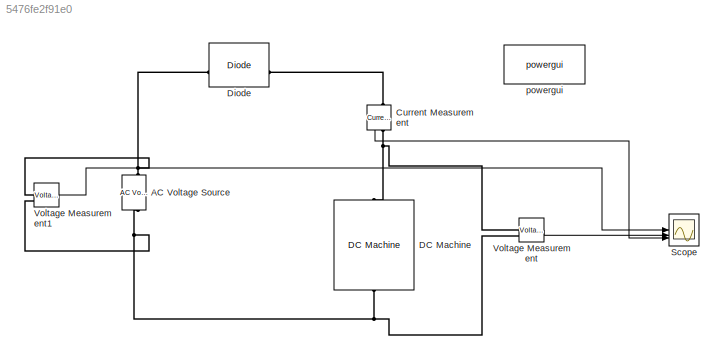
MODEL slx_5476fe2f91e0
KIND model
CONFIG AbsTol = auto
CONFIG EnableMultiTasking = off
CONFIG FixedStep = auto
CONFIG MaxStep = auto
CONFIG MinStep = auto
CONFIG RelTol = 1e-3
CONFIG SampleTimeConstraint = Unconstrained
CONFIG SolverName = VariableStepAuto
CONFIG StartTime = 0.0
CONFIG StopTime = 0.1
BLOCK [Reference] AC Voltage Source  REF=spsACVoltageSourceLib/AC Voltage Source
  LibrarySourceBlock = sps_lib/Sources/AC Voltage Source
  SourceBlock = spsACVoltageSourceLib/AC Voltage Source
  SourceType = AC Voltage Source
BLOCK [Reference] Current Measurement  REF=spsCurrentMeasurementLib/Current Measurement
  LibrarySourceBlock = sps_lib/Sensors and Measurements/Current Measurement
  NameLocation = left
  SourceBlock = spsCurrentMeasurementLib/Current Measurement
  SourceType = Current Measurement
  UserDataPersistent = on
BLOCK [Reference] DC Machine  REF=spsDCMachineLib/DC Machine
  LibrarySourceBlock = sps_lib/Electrical Machines/DC Machine
  NameLocation = left
  SourceBlock = spsDCMachineLib/DC Machine
  SourceType = DC machine
BLOCK [Reference] Diode  REF=spsDiodeLib/Diode
  LibrarySourceBlock = sps_lib/Power Electronics/Diode
  SourceBlock = spsDiodeLib/Diode
  SourceType = Diode
BLOCK [Scope] Scope
  ActiveDisplayYMaximum = 287.4492241378735
  ActiveDisplayYMinimum = -287.36705557484026
  Floating = off
  GraphicalSettings = {"Style":{"BackgroundColor":[0.12941176470588237,0.12941176470588237,0.12941176470588237],"AxesColor":[0.07058823529411765,0.07058823529411765,0.07058823529411765],"LabelsColor":[0.8509803921568627,0.8509803921568627,0.8509803921568627],"PreserveColors":false,"Visible":[true,true,true],"LineStyle":["-","-","-"],"LineWidth":[1.5,1.5,1.5],"BarWidth":[0.9,0.9,0.9],"LineColor":["auto","auto","auto"],"...<+2739ch>
  LayoutDimensionsString = [3,1]
  MultipleDisplayCache = [{"MaxYLimMag":287.4492241378735,"MaxYLimReal":287.4492241378735,"MinYLimMag":0,"MinYLimReal":-287.36705557484026,"PlotAsMagnitudePhase":false,"ShowGrid":true,"ShowLegend":true,"Title":"%<SignalLabel>","YLabel":""},{"MaxYLimMag":288.17786499971106,"MaxYLimReal":286.58782826359095,"MinYLimMag":0,"MinYLimReal":-288.17786499971106,"PlotAsMagnitudePhase":false,"ShowGrid":true,"ShowLegend":true,"Title"...<+247ch>
  NumInputPorts = 3
  ScopeFrameLocation = window
  ShowLegend = on
  WasSavedAsWebScope = on
  WindowPosition = [1.000000,49.000000,1536.000000,889.000000,]
BLOCK [Reference] Voltage Measurement  REF=spsVoltageMeasurementLib/Voltage Measurement
  LibrarySourceBlock = sps_lib/Sensors and Measurements/Voltage Measurement
  SourceBlock = spsVoltageMeasurementLib/Voltage Measurement
  SourceType = Voltage Measurement
  UserDataPersistent = on
BLOCK [Reference] Voltage Measurement1  REF=spsVoltageMeasurementLib/Voltage Measurement
  LibrarySourceBlock = sps_lib/Sensors and Measurements/Voltage Measurement
  SourceBlock = spsVoltageMeasurementLib/Voltage Measurement
  SourceType = Voltage Measurement
  UserDataPersistent = on
BLOCK [Reference] powergui  REF=sps_lib/powergui
  LibrarySourceBlock = sps_lib/powergui
  Priority = 1
  SourceBlock = sps_lib/powergui
  SourceType = PSB option menu block
LINE Current Measurement:1 -> Scope:3
LINE Voltage Measurement1:1 -> Scope:1
LINE Voltage Measurement:1 -> Scope:2
PNET net1: AC Voltage Source:LConn1 -- DC Machine:RConn1 -- Voltage Measurement1:LConn2 -- Voltage Measurement:LConn2
PNET net2: AC Voltage Source:RConn1 -- Diode:LConn1 -- Voltage Measurement1:LConn1
PLINE Current Measurement:LConn1 -- Diode:RConn1
PNET net3: Current Measurement:RConn1 -- DC Machine:LConn1 -- Voltage Measurement:LConn1
note: PNET lines group multi-terminal physical nets as a canonical sorted terminal list (undirected conserving connections); 2-terminal nets keep the pairwise PLINE form
